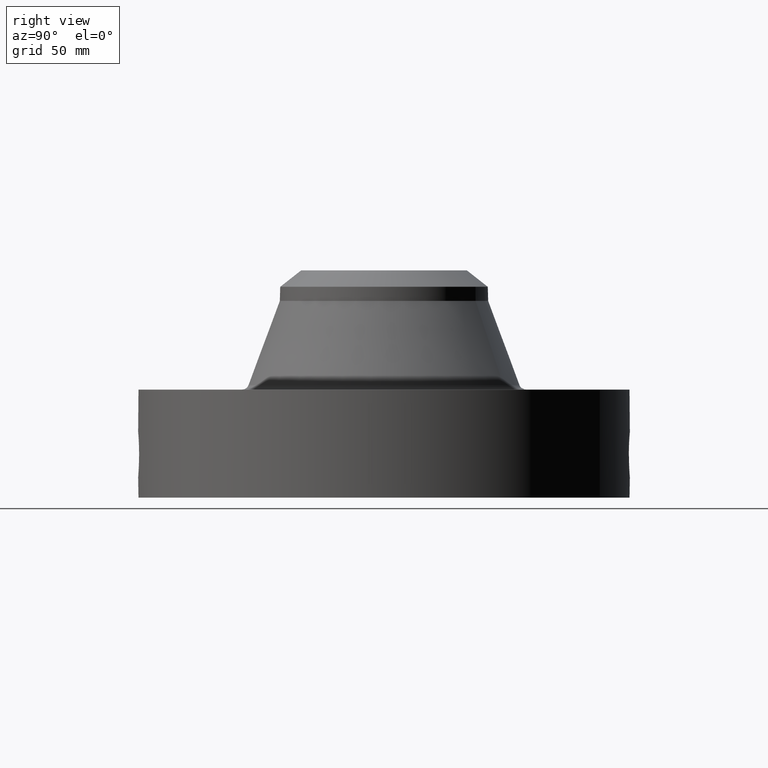
[diagram: clean part render]
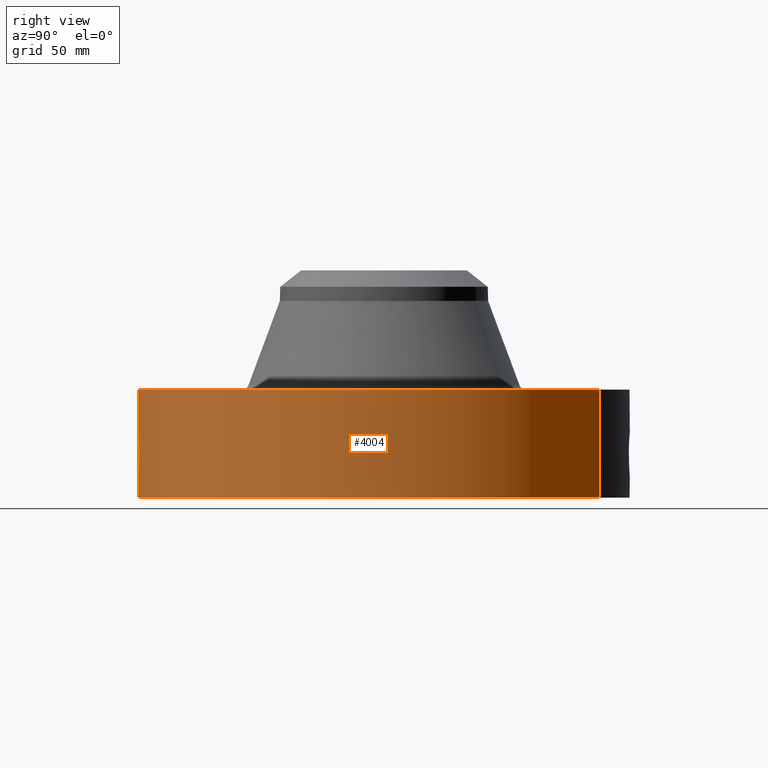
[diagram: same view with one face highlighted and labeled with its STEP entity id]
A machine part, right view. The second image highlights one B-rep face of the part: STEP entity #4004.
In plain terms, the highlighted cylindrical surface (partial cylindrical patch) has radius 104.775 mm, axis along (0, 0, -1).
Its self-contained STEP definition (entity closure, byte-faithful):
#2918=AXIS2_PLACEMENT_3D('Circle Axis2P3D',#2916,#2917,$) ;
#3735=AXIS2_PLACEMENT_3D('Cylinder Axis2P3D',#3732,#3733,#3734) ;
#3880=AXIS2_PLACEMENT_3D('Circle Axis2P3D',#3878,#3879,$) ;
#2916=CARTESIAN_POINT('Axis2P3D Location',(0.,0.,1.81300000001)) ;
#2920=CARTESIAN_POINT('Vertex',(1.97763034675,3.62002806781,1.81300000001)) ;
#2922=CARTESIAN_POINT('Vertex',(-1.97763034675,-3.62002806781,1.81300000001)) ;
#3732=CARTESIAN_POINT('Axis2P3D Location',(0.,0.,1.90650000001)) ;
#3741=CARTESIAN_POINT('Vertex',(-1.97763034675,-3.62002806781,2.79741234551E-016)) ;
#3743=CARTESIAN_POINT('Vertex',(1.97763034675,3.62002806781,2.79741234551E-016)) ;
#3746=CARTESIAN_POINT('Line Origine',(-1.97763034675,-3.62002806781,0.906500000004)) ;
#3751=CARTESIAN_POINT('Line Origine',(1.97763034675,3.62002806781,0.906500000004)) ;
#3878=CARTESIAN_POINT('Axis2P3D Location',(0.,0.,2.79741234551E-016)) ;
#3890=CARTESIAN_POINT('Control Point',(0.0708237445681,-4.12439195486,1.09694488906)) ;
#3891=CARTESIAN_POINT('Control Point',(0.0477741582968,-4.1247877606,1.10166279614)) ;
#3892=CARTESIAN_POINT('Control Point',(0.0242486164636,-4.12499584538,1.10407066233)) ;
#3893=CARTESIAN_POINT('Control Point',(0.000717367610591,-4.12499993764,1.10411849621)) ;
#3894=CARTESIAN_POINT('Vertex',(0.0707906539045,-4.12439279631,1.09695198078)) ;
#3896=CARTESIAN_POINT('Vertex',(0.000717115501111,-4.12499993768,1.10411850626)) ;
#3900=CARTESIAN_POINT('Control Point',(0.0707905104107,-4.12439252542,1.09695129721)) ;
#3901=CARTESIAN_POINT('Control Point',(0.105532809474,-4.12379621334,1.09076595761)) ;
#3902=CARTESIAN_POINT('Control Point',(0.139240030295,-4.12276503843,1.07859017267)) ;
#3903=CARTESIAN_POINT('Control Point',(0.170106274733,-4.12149109612,1.06141106894)) ;
#3904=CARTESIAN_POINT('Vertex',(0.170106274733,-4.12149109612,1.06141106894)) ;
#3908=CARTESIAN_POINT('Control Point',(0.170106274733,-4.12149109612,1.06141106894)) ;
#3909=CARTESIAN_POINT('Control Point',(0.189944594202,-4.1206723093,1.0503697337)) ;
#3910=CARTESIAN_POINT('Control Point',(0.208623296466,-4.11975704374,1.03728198267)) ;
#3911=CARTESIAN_POINT('Control Point',(0.225824740993,-4.11881392958,1.02251883288)) ;
#3912=CARTESIAN_POINT('Vertex',(0.225824957479,-4.11881412254,1.02251908233)) ;
#3916=CARTESIAN_POINT('Control Point',(0.351866715743,-4.10996530575,0.785464207791)) ;
#3917=CARTESIAN_POINT('Control Point',(0.344978882639,-4.11055499424,0.853986425443)) ;
#3918=CARTESIAN_POINT('Control Point',(0.320314342744,-4.11268400509,0.920774518582)) ;
#3919=CARTESIAN_POINT('Control Point',(0.278761006632,-4.11591176368,0.978540475683)) ;
#3920=CARTESIAN_POINT('Control Point',(0.225808976489,-4.11881479388,1.02253227726)) ;
#3921=CARTESIAN_POINT('Vertex',(0.351866557636,-4.1099653631,0.785465857635)) ;
#3925=CARTESIAN_POINT('Control Point',(0.0285867396708,-4.12490094408,0.341014416736)) ;
#3926=CARTESIAN_POINT('Control Point',(0.0731508698229,-4.12459210195,0.346762623172)) ;
#3927=CARTESIAN_POINT('Control Point',(0.116605974603,-4.12368909575,0.359610406951)) ;
#3928=CARTESIAN_POINT('Control Point',(0.157313744092,-4.1222622857,0.379187285583)) ;
#3929=CARTESIAN_POINT('Control Point',(0.218412119355,-4.11943105519,0.420865842627)) ;
#3930=CARTESIAN_POINT('Control Point',(0.267086053022,-4.11640755437,0.474664182728)) ;
#3931=CARTESIAN_POINT('Control Point',(0.284316472171,-4.1152344884,0.497667941506)) ;
#3932=CARTESIAN_POINT('Control Point',(0.325710071637,-4.11223072802,0.564664981654)) ;
#3933=CARTESIAN_POINT('Control Point',(0.34972815627,-4.11016859145,0.63919408656)) ;
#3934=CARTESIAN_POINT('Control Point',(0.35770991386,-4.1094520315,0.688220831803)) ;
#3935=CARTESIAN_POINT('Control Point',(0.358385647066,-4.10940720046,0.737417363089)) ;
#3936=CARTESIAN_POINT('Control Point',(0.351866479648,-4.10996532597,0.785465839276)) ;
#3937=CARTESIAN_POINT('Vertex',(0.0285867396708,-4.12490094408,0.341014416736)) ;
#3941=CARTESIAN_POINT('Control Point',(0.0285867396708,-4.12490094408,0.341014416736)) ;
#3942=CARTESIAN_POINT('Control Point',(0.0190504160254,-4.12496703352,0.340850653827)) ;
#3943=CARTESIAN_POINT('Control Point',(0.00951372397921,-4.12500000631,0.340970810994)) ;
#3944=CARTESIAN_POINT('Control Point',(-2.72878354221E-006,-4.12500000002,0.341374667804)) ;
#3945=CARTESIAN_POINT('Vertex',(-2.72878353457E-006,-4.12500000002,0.341374667804)) ;
#3949=CARTESIAN_POINT('Control Point',(-0.195057006855,-4.12038563295,0.392957545942)) ;
#3950=CARTESIAN_POINT('Control Point',(-0.134929917476,-4.12323201946,0.361663843688)) ;
#3951=CARTESIAN_POINT('Control Point',(-0.0678694130243,-4.12499995512,0.344254776972)) ;
#3952=CARTESIAN_POINT('Control Point',(-2.72878353855E-006,-4.12500000002,0.341374667804)) ;
#3953=CARTESIAN_POINT('Vertex',(-0.195057006855,-4.12038563295,0.392957545942)) ;
#3957=CARTESIAN_POINT('Control Point',(-0.27774176835,-4.11563901603,0.448820748194)) ;
#3958=CARTESIAN_POINT('Control Point',(-0.252440295955,-4.11734647279,0.42703734352)) ;
#3959=CARTESIAN_POINT('Control Point',(-0.224590682221,-4.11898752344,0.408328621406)) ;
#3960=CARTESIAN_POINT('Control Point',(-0.195057006855,-4.12038563295,0.392957545942)) ;
#3961=CARTESIAN_POINT('Vertex',(-0.277741768351,-4.11563901603,0.448820748194)) ;
#3965=CARTESIAN_POINT('Control Point',(-0.277741768351,-4.11563901603,0.448820748194)) ;
#3966=CARTESIAN_POINT('Control Point',(-0.346084675619,-4.11102693031,0.516500465015)) ;
#3967=CARTESIAN_POINT('Control Point',(-0.392503238355,-4.10632847898,0.605167340971)) ;
#3968=CARTESIAN_POINT('Control Point',(-0.41234374678,-4.10434301329,0.701847270878)) ;
#3969=CARTESIAN_POINT('Control Point',(-0.406546638362,-4.10491715275,0.797902554286)) ;
#3970=CARTESIAN_POINT('Vertex',(-0.406546638362,-4.10491715275,0.797902554286)) ;
#3974=CARTESIAN_POINT('Control Point',(-0.406546638362,-4.10491715275,0.797902554286)) ;
#3975=CARTESIAN_POINT('Control Point',(-0.396696310702,-4.10589271875,0.849925929671)) ;
#3976=CARTESIAN_POINT('Control Point',(-0.377107797446,-4.10780290794,0.899798074872)) ;
#3977=CARTESIAN_POINT('Control Point',(-0.348680854773,-4.11043683718,0.9448801883)) ;
#3978=CARTESIAN_POINT('Control Point',(-0.272595117203,-4.11655133052,1.02936559514)) ;
#3979=CARTESIAN_POINT('Control Point',(-0.173676705197,-4.12189830002,1.08163746444)) ;
#3980=CARTESIAN_POINT('Control Point',(-0.116496619111,-4.12398624619,1.09950776358)) ;
#3981=CARTESIAN_POINT('Control Point',(-0.057834299342,-4.12500036264,1.10698939408)) ;
#3982=CARTESIAN_POINT('Control Point',(2.58579355096E-005,-4.12499999994,1.10415298439)) ;
#3983=CARTESIAN_POINT('Vertex',(2.58579355088E-005,-4.12499999994,1.10415298439)) ;
#3987=CARTESIAN_POINT('Control Point',(0.000717115488815,-4.12499993768,1.10411850625)) ;
#3988=CARTESIAN_POINT('Control Point',(0.000371509560312,-4.12499999777,1.10413603992)) ;
#3989=CARTESIAN_POINT('Control Point',(2.58579439141E-005,-4.12499999994,1.10415298438)) ;
#2917=DIRECTION('Axis2P3D Direction',(0.,0.,-0.0393700787402)) ;
#3733=DIRECTION('Axis2P3D Direction',(0.,0.,-0.0393700787402)) ;
#3734=DIRECTION('Axis2P3D XDirection',(0.0188750212049,0.0345504945626,0.)) ;
#3747=DIRECTION('Vector Direction',(0.,0.,-0.0393700787402)) ;
#3752=DIRECTION('Vector Direction',(0.,0.,-0.0393700787402)) ;
#3879=DIRECTION('Axis2P3D Direction',(0.,0.,-0.0393700787402)) ;
#3748=VECTOR('Line Direction',#3747,0.0393700787402) ;
#3753=VECTOR('Line Direction',#3752,0.0393700787402) ;
#3884=ORIENTED_EDGE('',*,*,#3882,.F.) ;
#3885=ORIENTED_EDGE('',*,*,#3755,.T.) ;
#3886=ORIENTED_EDGE('',*,*,#2924,.T.) ;
#3887=ORIENTED_EDGE('',*,*,#3750,.F.) ;
#3992=ORIENTED_EDGE('',*,*,#3898,.F.) ;
#3993=ORIENTED_EDGE('',*,*,#3906,.T.) ;
#3994=ORIENTED_EDGE('',*,*,#3914,.T.) ;
#3995=ORIENTED_EDGE('',*,*,#3923,.F.) ;
#3996=ORIENTED_EDGE('',*,*,#3939,.F.) ;
#3997=ORIENTED_EDGE('',*,*,#3947,.T.) ;
#3998=ORIENTED_EDGE('',*,*,#3955,.F.) ;
#3999=ORIENTED_EDGE('',*,*,#3963,.F.) ;
#4000=ORIENTED_EDGE('',*,*,#3972,.T.) ;
#4001=ORIENTED_EDGE('',*,*,#3985,.T.) ;
#4002=ORIENTED_EDGE('',*,*,#3990,.F.) ;
#4003=FACE_BOUND('',#3991,.T.) ;
#4004=ADVANCED_FACE('PartBody',(#3888,#4003),#3736,.T.) ;
#3889=B_SPLINE_CURVE_WITH_KNOTS('',3,(#3890,#3891,#3892,#3893),.UNSPECIFIED.,.F.,.U.,(4,4),(3.91182776593,6.52241187754),.UNSPECIFIED.) ;
#3899=B_SPLINE_CURVE_WITH_KNOTS('',3,(#3900,#3901,#3902,#3903),.UNSPECIFIED.,.F.,.U.,(4,4),(0.,3.96502916236),.UNSPECIFIED.) ;
#3907=B_SPLINE_CURVE_WITH_KNOTS('',3,(#3908,#3909,#3910,#3911),.UNSPECIFIED.,.F.,.U.,(4,4),(0.,2.54839929048),.UNSPECIFIED.) ;
#3915=B_SPLINE_CURVE_WITH_KNOTS('',4,(#3916,#3917,#3918,#3919,#3920),.UNSPECIFIED.,.F.,.U.,(5,5),(14.8279619849,25.0224234743),.UNSPECIFIED.) ;
#3924=B_SPLINE_CURVE_WITH_KNOTS('',5,(#3925,#3926,#3927,#3928,#3929,#3930,#3931,#3932,#3933,#3934,#3935,#3936),.UNSPECIFIED.,.F.,.U.,(6,3,3,6),(0.,7.80986138242,12.9724774228,22.0575084502),.UNSPECIFIED.) ;
#3940=B_SPLINE_CURVE_WITH_KNOTS('',3,(#3941,#3942,#3943,#3944),.UNSPECIFIED.,.F.,.U.,(4,4),(0.,0.994580578724),.UNSPECIFIED.) ;
#3948=B_SPLINE_CURVE_WITH_KNOTS('',3,(#3949,#3950,#3951,#3952),.UNSPECIFIED.,.F.,.U.,(4,4),(0.,7.09286199143),.UNSPECIFIED.) ;
#3956=B_SPLINE_CURVE_WITH_KNOTS('',3,(#3957,#3958,#3959,#3960),.UNSPECIFIED.,.F.,.U.,(4,4),(0.,3.48392521475),.UNSPECIFIED.) ;
#3964=B_SPLINE_CURVE_WITH_KNOTS('',4,(#3965,#3966,#3967,#3968,#3969),.UNSPECIFIED.,.F.,.U.,(5,5),(0.,13.3803744941),.UNSPECIFIED.) ;
#3973=B_SPLINE_CURVE_WITH_KNOTS('',5,(#3974,#3975,#3976,#3977,#3978,#3979,#3980,#3981,#3982),.UNSPECIFIED.,.F.,.U.,(6,3,6),(0.,9.20582115677,20.0210814552),.UNSPECIFIED.) ;
#3986=B_SPLINE_CURVE_WITH_KNOTS('',2,(#3987,#3988,#3989),.UNSPECIFIED.,.F.,.U.,(3,3),(1.12442704957,1.15027082638),.UNSPECIFIED.) ;
#2919=CIRCLE('generated circle',#2918,4.12500000002) ;
#3881=CIRCLE('generated circle',#3880,4.12500000002) ;
#3736=CYLINDRICAL_SURFACE('generated cylinder',#3735,4.12500000002) ;
#2924=EDGE_CURVE('',#2921,#2923,#2919,.T.) ;
#3750=EDGE_CURVE('',#3742,#2923,#3749,.F.) ;
#3755=EDGE_CURVE('',#3744,#2921,#3754,.F.) ;
#3882=EDGE_CURVE('',#3744,#3742,#3881,.T.) ;
#3898=EDGE_CURVE('',#3895,#3897,#3889,.T.) ;
#3906=EDGE_CURVE('',#3895,#3905,#3899,.T.) ;
#3914=EDGE_CURVE('',#3905,#3913,#3907,.T.) ;
#3923=EDGE_CURVE('',#3922,#3913,#3915,.T.) ;
#3939=EDGE_CURVE('',#3938,#3922,#3924,.T.) ;
#3947=EDGE_CURVE('',#3938,#3946,#3940,.T.) ;
#3955=EDGE_CURVE('',#3954,#3946,#3948,.T.) ;
#3963=EDGE_CURVE('',#3962,#3954,#3956,.T.) ;
#3972=EDGE_CURVE('',#3962,#3971,#3964,.T.) ;
#3985=EDGE_CURVE('',#3971,#3984,#3973,.T.) ;
#3990=EDGE_CURVE('',#3897,#3984,#3986,.T.) ;
#3883=EDGE_LOOP('',(#3884,#3885,#3886,#3887)) ;
#3991=EDGE_LOOP('',(#3992,#3993,#3994,#3995,#3996,#3997,#3998,#3999,#4000,#4001,#4002)) ;
#3888=FACE_OUTER_BOUND('',#3883,.T.) ;
#3749=LINE('Line',#3746,#3748) ;
#3754=LINE('Line',#3751,#3753) ;
#2921=VERTEX_POINT('',#2920) ;
#2923=VERTEX_POINT('',#2922) ;
#3742=VERTEX_POINT('',#3741) ;
#3744=VERTEX_POINT('',#3743) ;
#3895=VERTEX_POINT('',#3894) ;
#3897=VERTEX_POINT('',#3896) ;
#3905=VERTEX_POINT('',#3904) ;
#3913=VERTEX_POINT('',#3912) ;
#3922=VERTEX_POINT('',#3921) ;
#3938=VERTEX_POINT('',#3937) ;
#3946=VERTEX_POINT('',#3945) ;
#3954=VERTEX_POINT('',#3953) ;
#3962=VERTEX_POINT('',#3961) ;
#3971=VERTEX_POINT('',#3970) ;
#3984=VERTEX_POINT('',#3983) ;